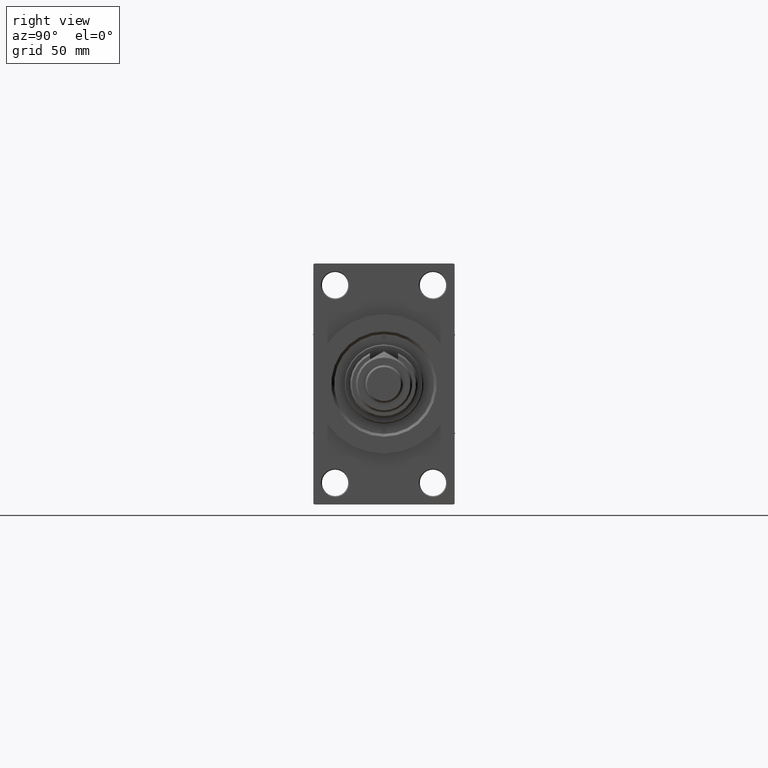
[diagram: clean part render]
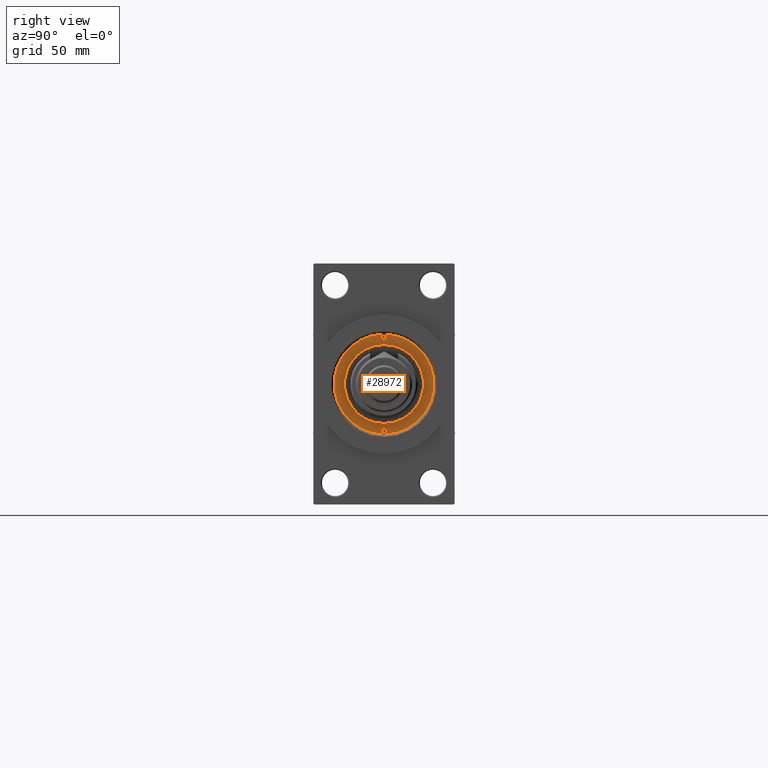
[diagram: same view with one face highlighted and labeled with its STEP entity id]
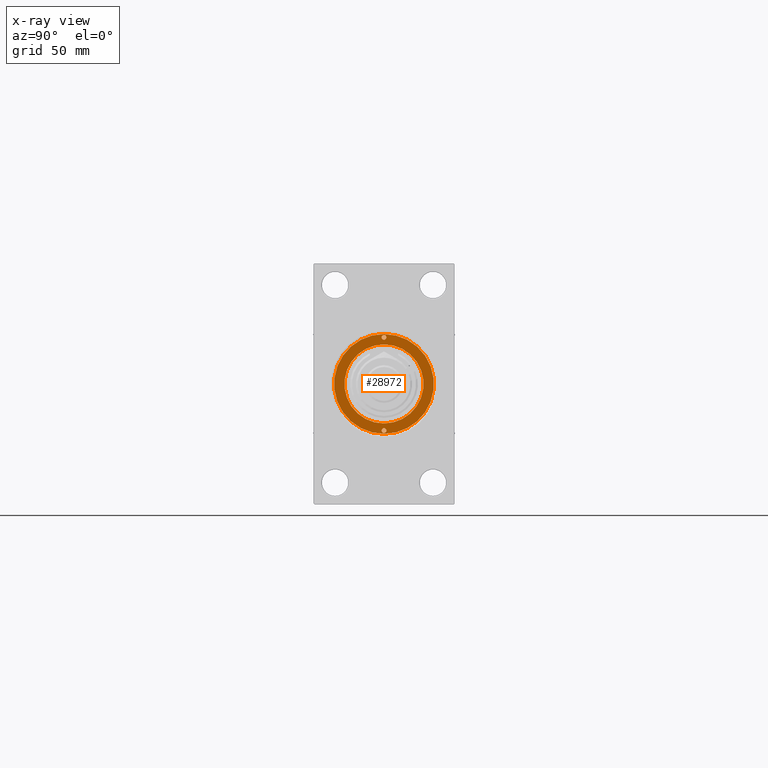
[diagram: x-ray of the same camera — body ghosted, the highlighted face saturated]
A machine part, right view. The second image highlights one B-rep face of the part: STEP entity #28972.
The next image is the same camera in x-ray: the body ghosted, the highlighted face saturated — about 0% of this face is hidden behind the body in this view.
In plain terms, the highlighted planar face has unit normal (1, -0, -0).
Its self-contained STEP definition (entity closure, byte-faithful):
#800 = DIRECTION ( 'NONE',  ( -0.000000000000000000, -0.000000000000000000, 1.000000000000000000 ) ) ;
#1678 = VERTEX_POINT ( 'NONE', #42428 ) ;
#4974 = EDGE_CURVE ( 'NONE', #39253, #40591, #5892, .T. ) ;
#5892 = CIRCLE ( 'NONE', #34271, 1.249999999999997558 ) ;
#6203 = AXIS2_PLACEMENT_3D ( 'NONE', #44105, #40295, #43851 ) ;
#6228 = VERTEX_POINT ( 'NONE', #13764 ) ;
#6871 = CARTESIAN_POINT ( 'NONE',  ( -26.00000000000000000, 1.530808498934188612E-16, 43.25999999999999801 ) ) ;
#7053 = ORIENTED_EDGE ( 'NONE', *, *, #4974, .F. ) ;
#7918 = EDGE_CURVE ( 'NONE', #6228, #20716, #14132, .T. ) ;
#8347 = EDGE_CURVE ( 'NONE', #1678, #18779, #20601, .T. ) ;
#8798 = VERTEX_POINT ( 'NONE', #20799 ) ;
#10105 = DIRECTION ( 'NONE',  ( 0.000000000000000000, 0.000000000000000000, 1.000000000000000000 ) ) ;
#12114 = FACE_OUTER_BOUND ( 'NONE', #41983, .T. ) ;
#13600 = DIRECTION ( 'NONE',  ( 1.000000000000000000, 0.000000000000000000, 0.000000000000000000 ) ) ;
#13655 = CARTESIAN_POINT ( 'NONE',  ( 0.000000000000000000, 0.000000000000000000, 43.25999999999999801 ) ) ;
#13764 = CARTESIAN_POINT ( 'NONE',  ( -26.50000000000000355, 0.000000000000000000, 43.25999999999999801 ) ) ;
#14065 = EDGE_CURVE ( 'NONE', #20716, #6228, #29622, .T. ) ;
#14096 = DIRECTION ( 'NONE',  ( -0.000000000000000000, -0.000000000000000000, 1.000000000000000000 ) ) ;
#14132 = CIRCLE ( 'NONE', #19790, 26.50000000000000355 ) ;
#14916 = PLANE ( 'NONE',  #44895 ) ;
#15718 = DIRECTION ( 'NONE',  ( 0.000000000000000000, 0.000000000000000000, 1.000000000000000000 ) ) ;
#16216 = EDGE_CURVE ( 'NONE', #40591, #39253, #36194, .T. ) ;
#16921 = EDGE_CURVE ( 'NONE', #18779, #1678, #20009, .T. ) ;
#18779 = VERTEX_POINT ( 'NONE', #6871 ) ;
#19716 = CARTESIAN_POINT ( 'NONE',  ( 0.000000000000000000, 0.000000000000000000, 43.25999999999999801 ) ) ;
#19790 = AXIS2_PLACEMENT_3D ( 'NONE', #13655, #10105, #44150 ) ;
#20009 = CIRCLE ( 'NONE', #49231, 1.249999999999997558 ) ;
#20531 = CARTESIAN_POINT ( 'NONE',  ( 0.000000000000000000, 0.000000000000000000, 43.25999999999999801 ) ) ;
#20601 = CIRCLE ( 'NONE', #26308, 1.249999999999997558 ) ;
#20716 = VERTEX_POINT ( 'NONE', #36670 ) ;
#20799 = CARTESIAN_POINT ( 'NONE',  ( -21.00000000000000000, 0.000000000000000000, 43.25999999999999801 ) ) ;
#21053 = DIRECTION ( 'NONE',  ( 0.000000000000000000, 0.000000000000000000, 1.000000000000000000 ) ) ;
#21302 = DIRECTION ( 'NONE',  ( 1.000000000000000000, 0.000000000000000000, 0.000000000000000000 ) ) ;
#21833 = DIRECTION ( 'NONE',  ( -0.000000000000000000, -0.000000000000000000, 1.000000000000000000 ) ) ;
#23827 = DIRECTION ( 'NONE',  ( 1.000000000000000000, 0.000000000000000000, 0.000000000000000000 ) ) ;
#25108 = ORIENTED_EDGE ( 'NONE', *, *, #45315, .F. ) ;
#25581 = AXIS2_PLACEMENT_3D ( 'NONE', #44194, #21053, #21302 ) ;
#26308 = AXIS2_PLACEMENT_3D ( 'NONE', #40913, #21833, #48270 ) ;
#27024 = ORIENTED_EDGE ( 'NONE', *, *, #16921, .F. ) ;
#27365 = DIRECTION ( 'NONE',  ( 1.000000000000000000, 0.000000000000000000, -0.000000000000000000 ) ) ;
#28972 = ADVANCED_FACE ( 'NONE', ( #35212, #34963, #45921, #12114 ), #14916, .T. ) ;
#29254 = EDGE_LOOP ( 'NONE', ( #25108, #41404 ) ) ;
#29313 = CARTESIAN_POINT ( 'NONE',  ( 26.00000000000000000, 0.000000000000000000, 43.25999999999999801 ) ) ;
#29622 = CIRCLE ( 'NONE', #25581, 26.50000000000000355 ) ;
#32035 = CARTESIAN_POINT ( 'NONE',  ( -24.75000000000000000, 0.000000000000000000, 43.25999999999999801 ) ) ;
#32225 = ORIENTED_EDGE ( 'NONE', *, *, #16216, .F. ) ;
#34271 = AXIS2_PLACEMENT_3D ( 'NONE', #39937, #800, #47813 ) ;
#34963 = FACE_BOUND ( 'NONE', #35162, .T. ) ;
#35003 = CARTESIAN_POINT ( 'NONE',  ( 23.50000000000000355, 1.530808498934188612E-16, 43.25999999999999801 ) ) ;
#35162 = EDGE_LOOP ( 'NONE', ( #32225, #7053 ) ) ;
#35212 = FACE_BOUND ( 'NONE', #42738, .T. ) ;
#36194 = CIRCLE ( 'NONE', #40282, 1.249999999999997558 ) ;
#36460 = AXIS2_PLACEMENT_3D ( 'NONE', #20531, #15718, #23827 ) ;
#36670 = CARTESIAN_POINT ( 'NONE',  ( 26.50000000000000355, 3.245314017740486554E-15, 43.25999999999999801 ) ) ;
#39253 = VERTEX_POINT ( 'NONE', #35003 ) ;
#39839 = ORIENTED_EDGE ( 'NONE', *, *, #14065, .T. ) ;
#39937 = CARTESIAN_POINT ( 'NONE',  ( 24.75000000000000000, 0.000000000000000000, 43.25999999999999801 ) ) ;
#40282 = AXIS2_PLACEMENT_3D ( 'NONE', #41294, #14096, #13600 ) ;
#40295 = DIRECTION ( 'NONE',  ( 0.000000000000000000, 0.000000000000000000, 1.000000000000000000 ) ) ;
#40591 = VERTEX_POINT ( 'NONE', #29313 ) ;
#40913 = CARTESIAN_POINT ( 'NONE',  ( -24.75000000000000000, 0.000000000000000000, 43.25999999999999801 ) ) ;
#41294 = CARTESIAN_POINT ( 'NONE',  ( 24.75000000000000000, 0.000000000000000000, 43.25999999999999801 ) ) ;
#41404 = ORIENTED_EDGE ( 'NONE', *, *, #47245, .F. ) ;
#41778 = ORIENTED_EDGE ( 'NONE', *, *, #8347, .F. ) ;
#41930 = CIRCLE ( 'NONE', #6203, 21.00000000000000000 ) ;
#41983 = EDGE_LOOP ( 'NONE', ( #43387, #39839 ) ) ;
#42428 = CARTESIAN_POINT ( 'NONE',  ( -23.50000000000000355, 0.000000000000000000, 43.25999999999999801 ) ) ;
#42738 = EDGE_LOOP ( 'NONE', ( #41778, #27024 ) ) ;
#43387 = ORIENTED_EDGE ( 'NONE', *, *, #7918, .T. ) ;
#43851 = DIRECTION ( 'NONE',  ( 1.000000000000000000, 0.000000000000000000, 0.000000000000000000 ) ) ;
#44105 = CARTESIAN_POINT ( 'NONE',  ( 0.000000000000000000, 0.000000000000000000, 43.25999999999999801 ) ) ;
#44150 = DIRECTION ( 'NONE',  ( 1.000000000000000000, 0.000000000000000000, 0.000000000000000000 ) ) ;
#44194 = CARTESIAN_POINT ( 'NONE',  ( 0.000000000000000000, 0.000000000000000000, 43.25999999999999801 ) ) ;
#44895 = AXIS2_PLACEMENT_3D ( 'NONE', #19716, #46168, #27365 ) ;
#45315 = EDGE_CURVE ( 'NONE', #8798, #48682, #41930, .T. ) ;
#45921 = FACE_BOUND ( 'NONE', #29254, .T. ) ;
#46168 = DIRECTION ( 'NONE',  ( 0.000000000000000000, 0.000000000000000000, 1.000000000000000000 ) ) ;
#47037 = DIRECTION ( 'NONE',  ( -0.000000000000000000, -0.000000000000000000, 1.000000000000000000 ) ) ;
#47245 = EDGE_CURVE ( 'NONE', #48682, #8798, #49286, .T. ) ;
#47796 = DIRECTION ( 'NONE',  ( 1.000000000000000000, 0.000000000000000000, 0.000000000000000000 ) ) ;
#47813 = DIRECTION ( 'NONE',  ( 1.000000000000000000, 0.000000000000000000, 0.000000000000000000 ) ) ;
#48270 = DIRECTION ( 'NONE',  ( 1.000000000000000000, 0.000000000000000000, 0.000000000000000000 ) ) ;
#48682 = VERTEX_POINT ( 'NONE', #49422 ) ;
#49231 = AXIS2_PLACEMENT_3D ( 'NONE', #32035, #47037, #47796 ) ;
#49286 = CIRCLE ( 'NONE', #36460, 21.00000000000000000 ) ;
#49422 = CARTESIAN_POINT ( 'NONE',  ( 21.00000000000000000, 2.571758278209441661E-15, 43.25999999999999801 ) ) ;